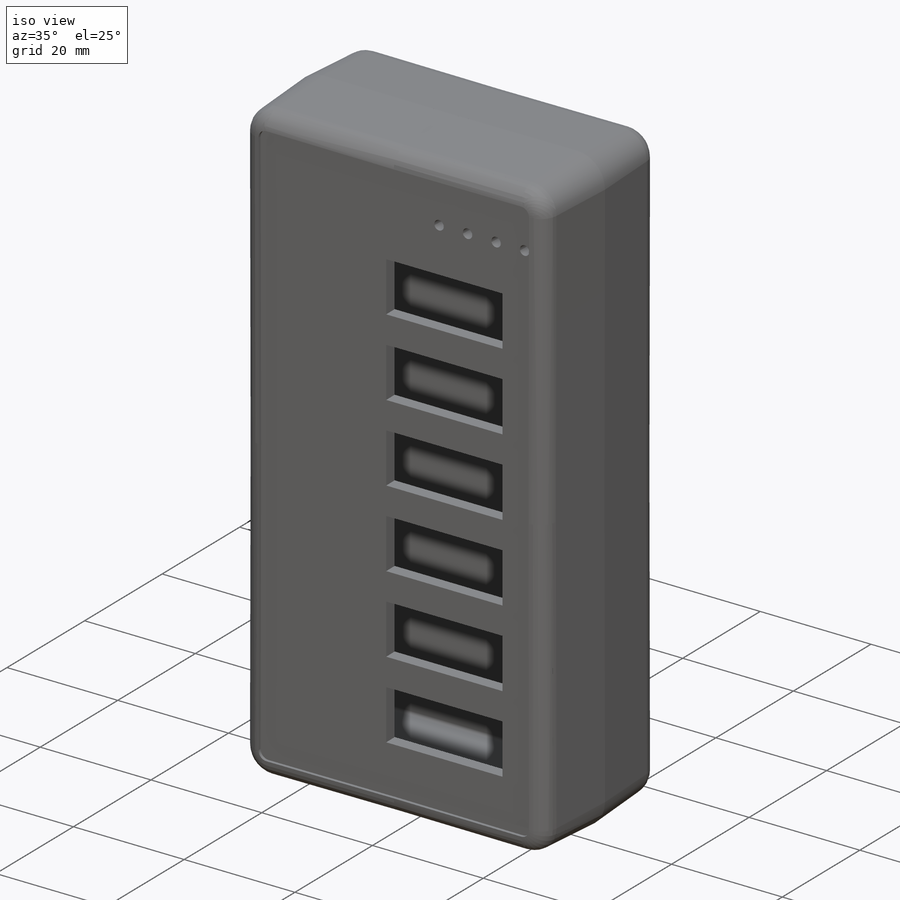
[diagram: iso view]
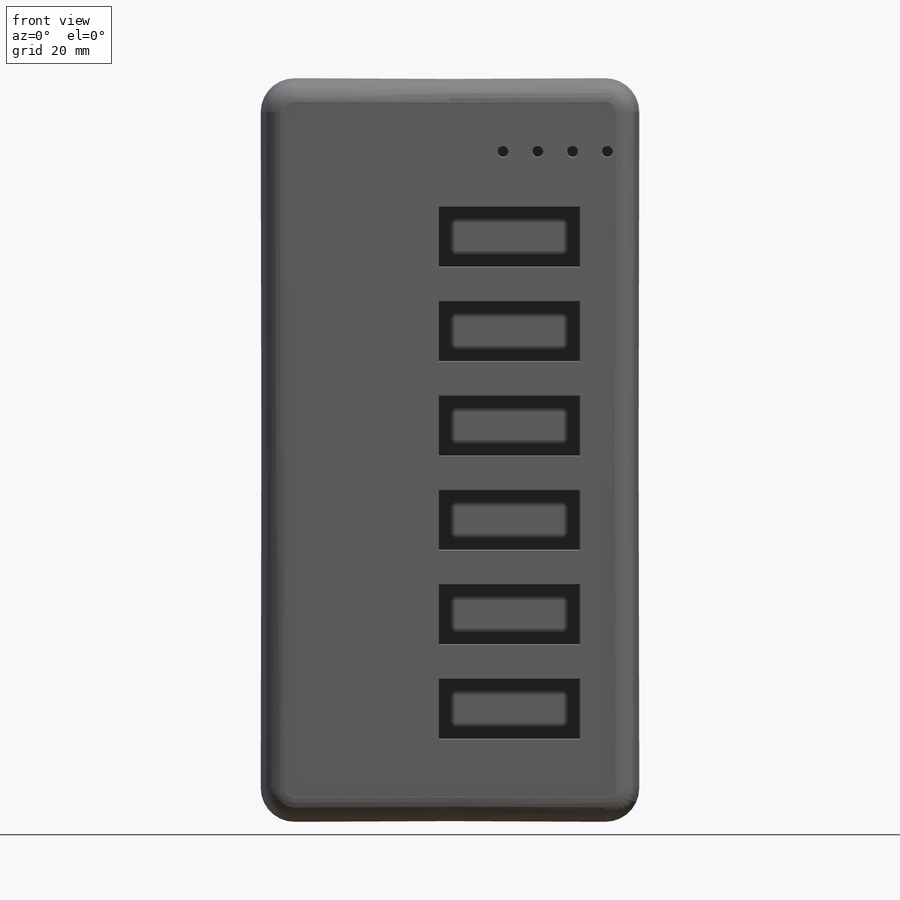
[diagram: front view]
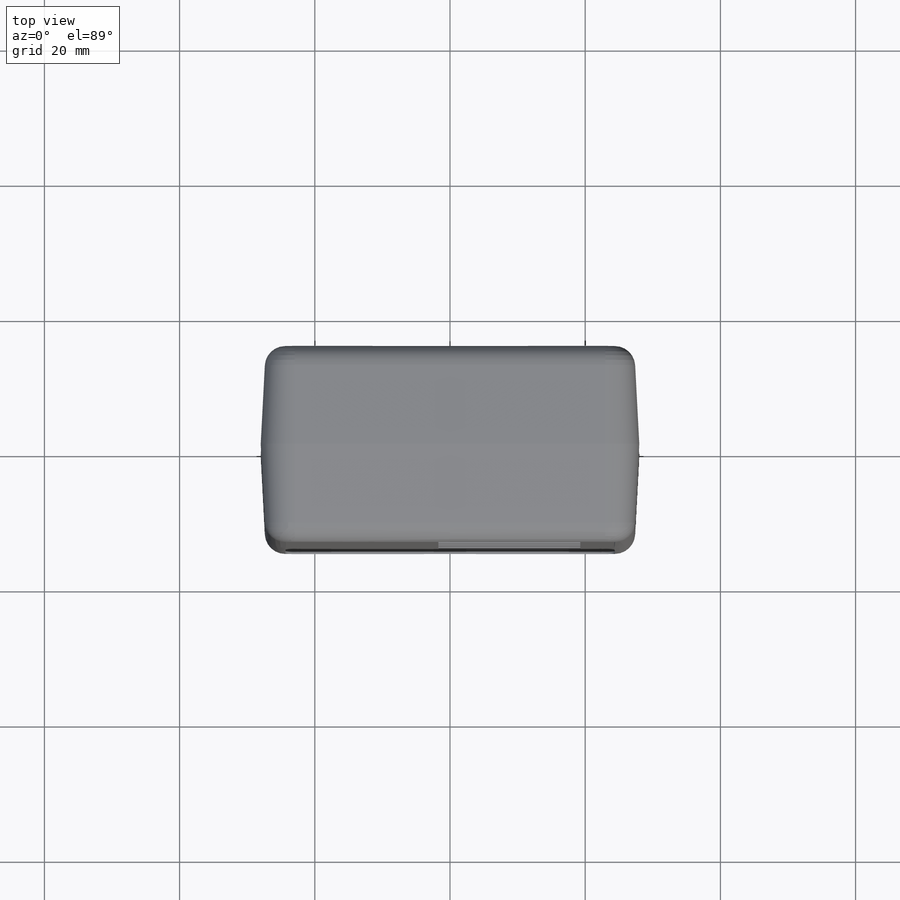
[diagram: top view]
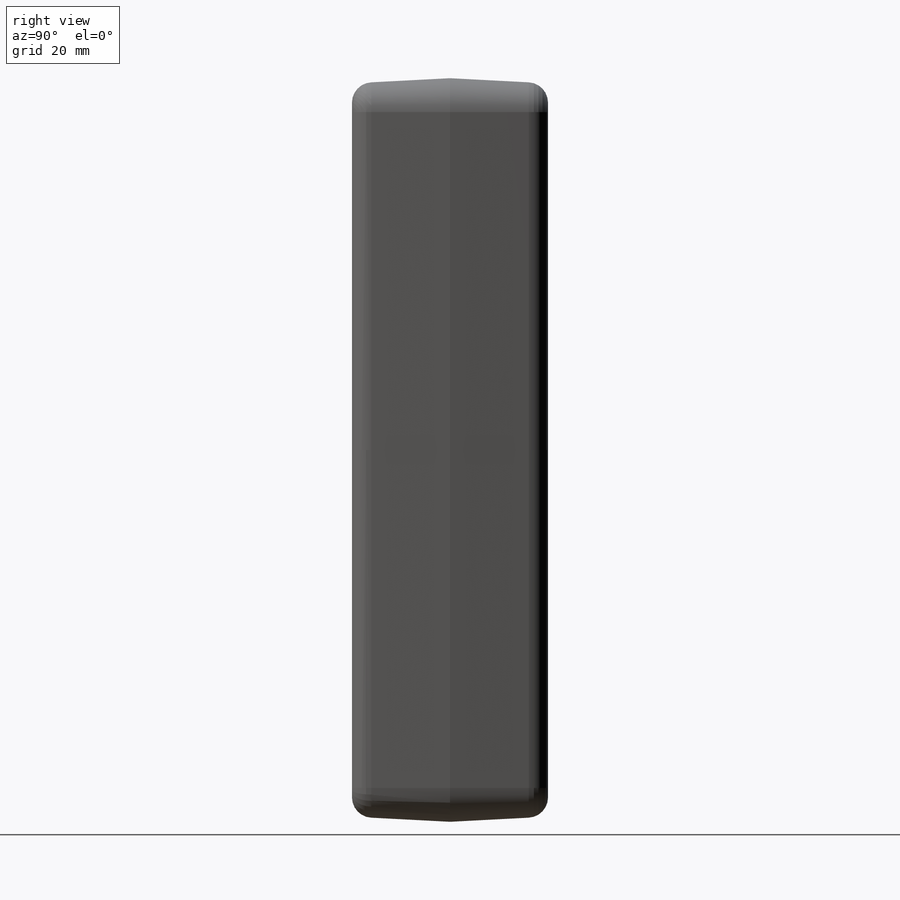
[diagram: right view]
SOLIDWORKS PART (.sldprt)
format: sldprt  version: not decoded by parser v0  size: 818,688 bytes
history: native  units: mm
features: sketch x7, cut_extrude x3, extrude x2, fillet x2, material x1, shell x1 (+11 scaffold rows collapsed)
feature tree (27):
  scaffold x11  (default folders/planes/origin — collapsed)
  material  "Material <not specified>"
  sketch  "Sketch1"  dims[c1.D1=16.0mm c1.D3=16.0mm c1.D4=60.0mm c1.D5=60.0mm c1.D6=~126.900944mm c2.D5=170.0mm c2.D6=37.0mm c2.D7=8.0mm c2.D8=230.0mm c3.D5=5.0mm c3.D2=40.0mm c3.D1=165.0mm c4.D2=75.0mm c4.D1=56.0mm c5.D2=150.0mm c5.D3=3.0mm c5.D4=50.0mm c5.D8=~115.759476mm c6.D2=110.0mm c6.D3=0.1mm c6.D4=0.1mm]
  extrude  "Boss-Extrude1"  Depth=29mm
  fillet  "Fillet1"  Radius=3mm
  fillet  "Fillet2"  Radius=3mm
  shell  "Shell1"  Thickness=2.5mm
  sketch  "Sketch3"  dims[D1=0.0mm]
  cut_extrude  "Cut-Extrude1"  Depth=0.5mm
  sketch  "Sketch4"  dims[c1.D1=9.0mm c1.D2=21.0mm c1.D3=20.0mm c1.D4=69.85mm c2.D3=6.0]
  cut_extrude  "Cut-Extrude2"  [1 undecoded]
  sketch  "Sketch9"  dims[D1=1.0mm]
  sketch  "Sketch10"  dims[c1.D1=~0.586138mm c2.D1=93.0deg c2.D2=~0.86001mm c3.D2=93.0deg c3.D3=1.0mm c3.D4=0.8mm c3.D1=~1.005561mm c4.D1=93.0deg c4.D2=~1.023329mm c5.D2=93.0deg c5.D1=~1.006549mm c6.D1=93.0deg c6.D2=~0.319636mm c7.D2=93.0deg]
  sketch  "Sketch12"  dims[c1.D1=6.0mm c1.D2=10.0mm c1.D3=10.0mm c2.D1=7.62mm c2.D3=2.0mm c2.D4=1.0mm c2.D5=5.0mm c3.D1=1.0mm c3.D2=5.15mm c3.D5=5.15mm]
  extrude  "Boss-Extrude2"  Depth=6.92mm
  sketch  "Sketch14"  dims[c1.D1=1.5mm c1.D4=1.5mm c1.D2=5.15mm c1.D3=8.2mm c2.D4=6.2mm]
  cut_extrude  "Cut-Extrude4"  Depth=10mm
decode coverage: 14 of 15 modeling features carry decoded parameters
note: ~ marks probable driven/reference dimensions
note: 1 parameter value undecoded
note: suppression state not decoded; provenance and decode notes live in map.json
